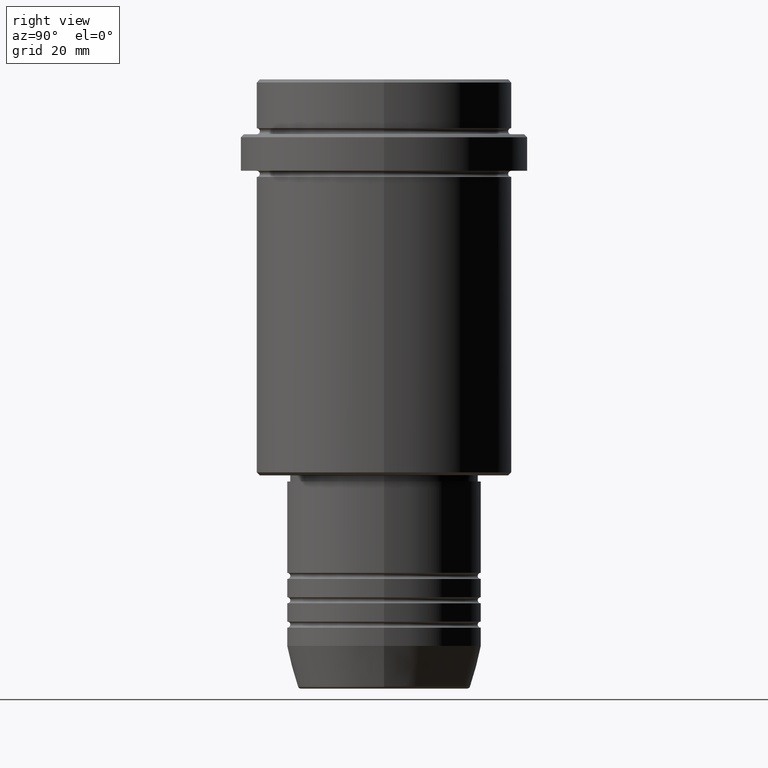
[diagram: clean part render]
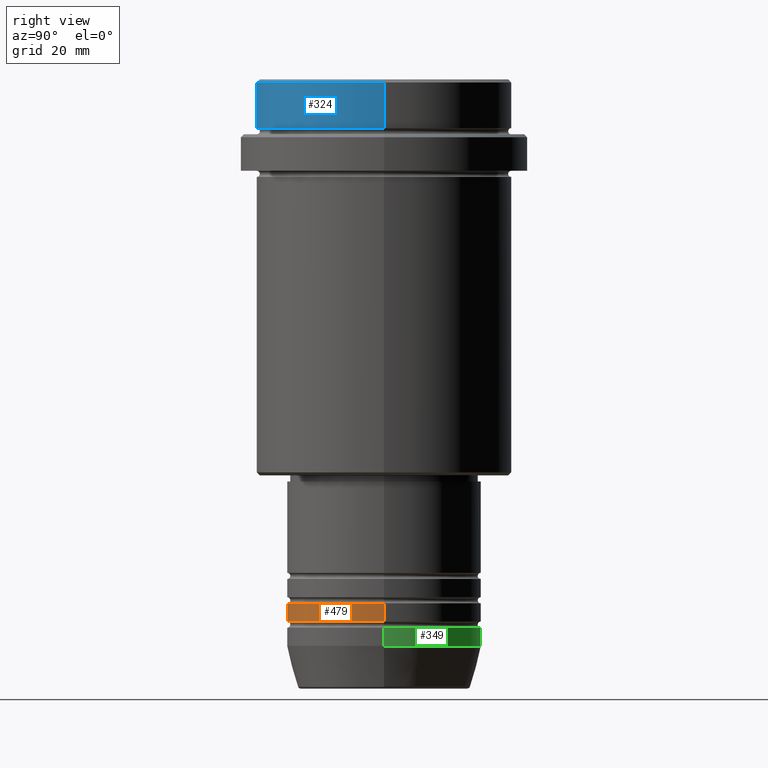
[diagram: same view with three faces highlighted in distinct colors, each labeled with its STEP entity id]
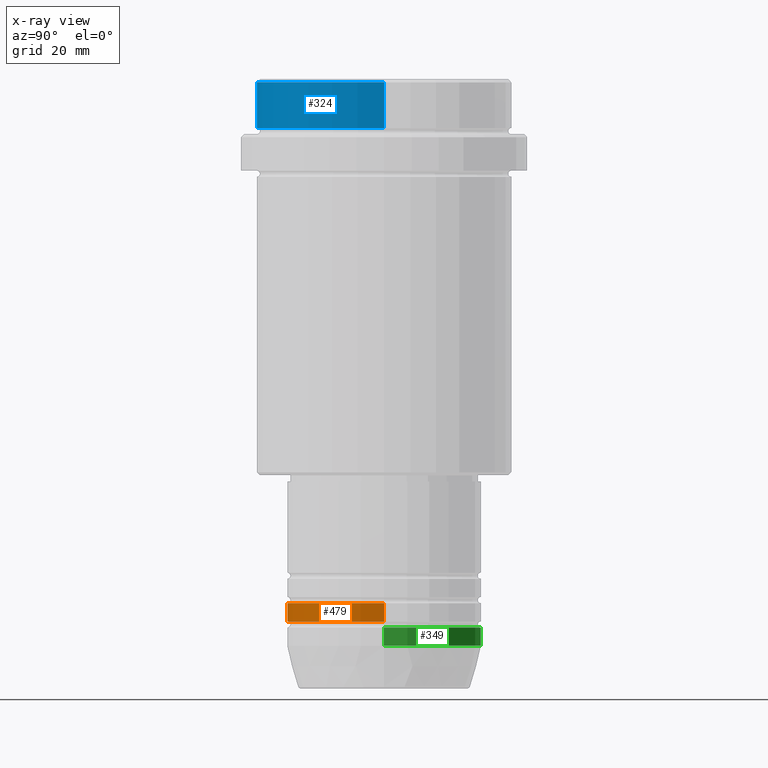
[diagram: x-ray of the same camera — body ghosted, the three highlighted faces saturated]
A machine part, right view with three faces highlighted in distinct colors.
The next image is the same camera in x-ray (body ghosted, the three faces saturated) — at least one of them is partly hidden behind the body in this view.
Their STEP definitions:

[orange] entity #479 — the highlighted cylindrical surface (partial cylindrical patch) has radius 16 mm, axis along (-0, -0, 1).
#7 = CARTESIAN_POINT ( 'NONE',  ( 0.000000000000000000, 0.000000000000000000, 0.000000000000000000 ) ) ;
#15 = CARTESIAN_POINT ( 'NONE',  ( -16.00000000000000000, 1.959434878635765131E-15, -85.99999999999988631 ) ) ;
#25 = LINE ( 'NONE', #1112, #635 ) ;
#27 = DIRECTION ( 'NONE',  ( -0.000000000000000000, -0.000000000000000000, 1.000000000000000000 ) ) ;
#29 = VERTEX_POINT ( 'NONE', #1347 ) ;
#33 = EDGE_CURVE ( 'NONE', #961, #869, #657, .T. ) ;
#44 = AXIS2_PLACEMENT_3D ( 'NONE', #876, #27, #662 ) ;
#148 = ORIENTED_EDGE ( 'NONE', *, *, #33, .F. ) ;
#186 = DIRECTION ( 'NONE',  ( -0.000000000000000000, -0.000000000000000000, 1.000000000000000000 ) ) ;
#188 = ORIENTED_EDGE ( 'NONE', *, *, #1206, .T. ) ;
#212 = VERTEX_POINT ( 'NONE', #1372 ) ;
#225 = DIRECTION ( 'NONE',  ( 1.000000000000000000, 0.000000000000000000, 0.000000000000000000 ) ) ;
#248 = CYLINDRICAL_SURFACE ( 'NONE', #263, 16.00000000000000000 ) ;
#263 = AXIS2_PLACEMENT_3D ( 'NONE', #7, #1099, #225 ) ;
#347 = DIRECTION ( 'NONE',  ( -0.000000000000000000, -0.000000000000000000, 1.000000000000000000 ) ) ;
#359 = FACE_OUTER_BOUND ( 'NONE', #742, .T. ) ;
#380 = CIRCLE ( 'NONE', #44, 16.00000000000000000 ) ;
#409 = CARTESIAN_POINT ( 'NONE',  ( 16.00000000000000000, 0.000000000000000000, -85.99999999999988631 ) ) ;
#463 = DIRECTION ( 'NONE',  ( -0.000000000000000000, -0.000000000000000000, 1.000000000000000000 ) ) ;
#479 = ADVANCED_FACE ( 'NONE', ( #359 ), #248, .T. ) ;
#501 = ORIENTED_EDGE ( 'NONE', *, *, #509, .T. ) ;
#503 = ORIENTED_EDGE ( 'NONE', *, *, #1360, .F. ) ;
#509 = EDGE_CURVE ( 'NONE', #212, #29, #380, .T. ) ;
#635 = VECTOR ( 'NONE', #347, 1000.000000000000000 ) ;
#657 = CIRCLE ( 'NONE', #699, 16.00000000000000000 ) ;
#662 = DIRECTION ( 'NONE',  ( 1.000000000000000000, 0.000000000000000000, 0.000000000000000000 ) ) ;
#699 = AXIS2_PLACEMENT_3D ( 'NONE', #1118, #463, #1125 ) ;
#742 = EDGE_LOOP ( 'NONE', ( #503, #501, #188, #148 ) ) ;
#869 = VERTEX_POINT ( 'NONE', #409 ) ;
#876 = CARTESIAN_POINT ( 'NONE',  ( 0.000000000000000000, 0.000000000000000000, -88.99999999999988631 ) ) ;
#883 = VECTOR ( 'NONE', #186, 1000.000000000000000 ) ;
#961 = VERTEX_POINT ( 'NONE', #15 ) ;
#1058 = LINE ( 'NONE', #1176, #883 ) ;
#1099 = DIRECTION ( 'NONE',  ( -0.000000000000000000, -0.000000000000000000, 1.000000000000000000 ) ) ;
#1112 = CARTESIAN_POINT ( 'NONE',  ( -16.00000000000000000, 1.959434878635765131E-15, 0.000000000000000000 ) ) ;
#1118 = CARTESIAN_POINT ( 'NONE',  ( 0.000000000000000000, 0.000000000000000000, -85.99999999999988631 ) ) ;
#1125 = DIRECTION ( 'NONE',  ( 1.000000000000000000, 0.000000000000000000, 0.000000000000000000 ) ) ;
#1176 = CARTESIAN_POINT ( 'NONE',  ( 16.00000000000000000, 0.000000000000000000, 0.000000000000000000 ) ) ;
#1206 = EDGE_CURVE ( 'NONE', #29, #869, #1058, .T. ) ;
#1347 = CARTESIAN_POINT ( 'NONE',  ( 16.00000000000000000, 0.000000000000000000, -88.99999999999988631 ) ) ;
#1360 = EDGE_CURVE ( 'NONE', #212, #961, #25, .T. ) ;
#1372 = CARTESIAN_POINT ( 'NONE',  ( -16.00000000000000000, 1.959434878635765131E-15, -88.99999999999988631 ) ) ;

[blue] entity #324 — the highlighted cylindrical surface (partial cylindrical patch) has radius 21 mm, axis along (-0, -0, 1).
#168 = ORIENTED_EDGE ( 'NONE', *, *, #394, .F. ) ;
#177 = AXIS2_PLACEMENT_3D ( 'NONE', #734, #948, #210 ) ;
#203 = CARTESIAN_POINT ( 'NONE',  ( 21.00000000000000000, 0.000000000000000000, -7.999999999999998224 ) ) ;
#210 = DIRECTION ( 'NONE',  ( 1.000000000000000000, 0.000000000000000000, 0.000000000000000000 ) ) ;
#216 = CARTESIAN_POINT ( 'NONE',  ( -21.00000000000000000, 2.571758278209441661E-15, 0.000000000000000000 ) ) ;
#244 = EDGE_CURVE ( 'NONE', #753, #795, #1162, .T. ) ;
#254 = CARTESIAN_POINT ( 'NONE',  ( 0.000000000000000000, 0.000000000000000000, -7.999999999999998224 ) ) ;
#279 = ORIENTED_EDGE ( 'NONE', *, *, #244, .T. ) ;
#324 = ADVANCED_FACE ( 'NONE', ( #1179 ), #402, .T. ) ;
#394 = EDGE_CURVE ( 'NONE', #753, #1022, #1197, .T. ) ;
#402 = CYLINDRICAL_SURFACE ( 'NONE', #177, 21.00000000000000000 ) ;
#457 = DIRECTION ( 'NONE',  ( -0.000000000000000000, -0.000000000000000000, 1.000000000000000000 ) ) ;
#486 = DIRECTION ( 'NONE',  ( 1.000000000000000000, 0.000000000000000000, 0.000000000000000000 ) ) ;
#530 = EDGE_CURVE ( 'NONE', #795, #1070, #667, .T. ) ;
#558 = CARTESIAN_POINT ( 'NONE',  ( 21.00000000000000000, 0.000000000000000000, 0.000000000000000000 ) ) ;
#585 = AXIS2_PLACEMENT_3D ( 'NONE', #254, #595, #1151 ) ;
#595 = DIRECTION ( 'NONE',  ( -0.000000000000000000, -0.000000000000000000, 1.000000000000000000 ) ) ;
#632 = EDGE_CURVE ( 'NONE', #1070, #1022, #815, .T. ) ;
#648 = DIRECTION ( 'NONE',  ( -0.000000000000000000, -0.000000000000000000, 1.000000000000000000 ) ) ;
#667 = LINE ( 'NONE', #558, #867 ) ;
#705 = CARTESIAN_POINT ( 'NONE',  ( -21.00000000000000000, 2.571758278209441661E-15, -7.999999999999998224 ) ) ;
#734 = CARTESIAN_POINT ( 'NONE',  ( 0.000000000000000000, 0.000000000000000000, 0.000000000000000000 ) ) ;
#753 = VERTEX_POINT ( 'NONE', #705 ) ;
#767 = CARTESIAN_POINT ( 'NONE',  ( -21.00000000000000000, 2.571758278209441661E-15, -0.4999999999999970024 ) ) ;
#795 = VERTEX_POINT ( 'NONE', #203 ) ;
#815 = CIRCLE ( 'NONE', #1409, 21.00000000000000000 ) ;
#821 = DIRECTION ( 'NONE',  ( 0.000000000000000000, 0.000000000000000000, -1.000000000000000000 ) ) ;
#867 = VECTOR ( 'NONE', #457, 1000.000000000000000 ) ;
#948 = DIRECTION ( 'NONE',  ( -0.000000000000000000, -0.000000000000000000, 1.000000000000000000 ) ) ;
#981 = VECTOR ( 'NONE', #648, 1000.000000000000000 ) ;
#1022 = VERTEX_POINT ( 'NONE', #767 ) ;
#1053 = CARTESIAN_POINT ( 'NONE',  ( 0.000000000000000000, 0.000000000000000000, -0.4999999999999970024 ) ) ;
#1057 = EDGE_LOOP ( 'NONE', ( #168, #279, #1338, #1333 ) ) ;
#1070 = VERTEX_POINT ( 'NONE', #1257 ) ;
#1151 = DIRECTION ( 'NONE',  ( 1.000000000000000000, 0.000000000000000000, 0.000000000000000000 ) ) ;
#1162 = CIRCLE ( 'NONE', #585, 21.00000000000000000 ) ;
#1179 = FACE_OUTER_BOUND ( 'NONE', #1057, .T. ) ;
#1197 = LINE ( 'NONE', #216, #981 ) ;
#1257 = CARTESIAN_POINT ( 'NONE',  ( 21.00000000000000000, 0.000000000000000000, -0.4999999999999970024 ) ) ;
#1333 = ORIENTED_EDGE ( 'NONE', *, *, #632, .T. ) ;
#1338 = ORIENTED_EDGE ( 'NONE', *, *, #530, .T. ) ;
#1409 = AXIS2_PLACEMENT_3D ( 'NONE', #1053, #821, #486 ) ;

[green] entity #349 — the highlighted cylindrical surface (partial cylindrical patch) has radius 16 mm, axis along (-0, -0, 1).
#6 = EDGE_CURVE ( 'NONE', #1173, #301, #1346, .T. ) ;
#48 = CARTESIAN_POINT ( 'NONE',  ( -16.00000000000000000, 1.959434878635765131E-15, -93.00000000000000000 ) ) ;
#80 = ORIENTED_EDGE ( 'NONE', *, *, #1171, .T. ) ;
#81 = DIRECTION ( 'NONE',  ( -0.000000000000000000, -0.000000000000000000, 1.000000000000000000 ) ) ;
#103 = VERTEX_POINT ( 'NONE', #1130 ) ;
#243 = CARTESIAN_POINT ( 'NONE',  ( 0.000000000000000000, 0.000000000000000000, -90.00000000000000000 ) ) ;
#293 = DIRECTION ( 'NONE',  ( -0.000000000000000000, -0.000000000000000000, 1.000000000000000000 ) ) ;
#300 = CARTESIAN_POINT ( 'NONE',  ( 0.000000000000000000, 0.000000000000000000, 0.000000000000000000 ) ) ;
#301 = VERTEX_POINT ( 'NONE', #433 ) ;
#323 = FACE_OUTER_BOUND ( 'NONE', #631, .T. ) ;
#337 = AXIS2_PLACEMENT_3D ( 'NONE', #300, #81, #741 ) ;
#349 = ADVANCED_FACE ( 'NONE', ( #323 ), #653, .T. ) ;
#356 = VECTOR ( 'NONE', #1172, 1000.000000000000000 ) ;
#382 = VECTOR ( 'NONE', #293, 1000.000000000000000 ) ;
#425 = AXIS2_PLACEMENT_3D ( 'NONE', #243, #779, #1021 ) ;
#433 = CARTESIAN_POINT ( 'NONE',  ( -16.00000000000000000, 1.959434878635765131E-15, -90.00000000000000000 ) ) ;
#459 = ORIENTED_EDGE ( 'NONE', *, *, #802, .F. ) ;
#502 = DIRECTION ( 'NONE',  ( 1.000000000000000000, 0.000000000000000000, 0.000000000000000000 ) ) ;
#532 = DIRECTION ( 'NONE',  ( -0.000000000000000000, -0.000000000000000000, 1.000000000000000000 ) ) ;
#543 = AXIS2_PLACEMENT_3D ( 'NONE', #962, #532, #502 ) ;
#571 = ORIENTED_EDGE ( 'NONE', *, *, #6, .F. ) ;
#612 = CARTESIAN_POINT ( 'NONE',  ( -16.00000000000000000, 1.959434878635765131E-15, 0.000000000000000000 ) ) ;
#622 = CARTESIAN_POINT ( 'NONE',  ( 16.00000000000000000, 0.000000000000000000, 0.000000000000000000 ) ) ;
#631 = EDGE_LOOP ( 'NONE', ( #1095, #80, #571, #459 ) ) ;
#641 = LINE ( 'NONE', #622, #382 ) ;
#653 = CYLINDRICAL_SURFACE ( 'NONE', #337, 16.00000000000000000 ) ;
#708 = VERTEX_POINT ( 'NONE', #48 ) ;
#741 = DIRECTION ( 'NONE',  ( 1.000000000000000000, 0.000000000000000000, 0.000000000000000000 ) ) ;
#779 = DIRECTION ( 'NONE',  ( -0.000000000000000000, -0.000000000000000000, 1.000000000000000000 ) ) ;
#802 = EDGE_CURVE ( 'NONE', #103, #1173, #641, .T. ) ;
#945 = CARTESIAN_POINT ( 'NONE',  ( 16.00000000000000000, 0.000000000000000000, -90.00000000000000000 ) ) ;
#962 = CARTESIAN_POINT ( 'NONE',  ( 0.000000000000000000, 0.000000000000000000, -93.00000000000000000 ) ) ;
#1021 = DIRECTION ( 'NONE',  ( 1.000000000000000000, 0.000000000000000000, 0.000000000000000000 ) ) ;
#1023 = CIRCLE ( 'NONE', #543, 16.00000000000000000 ) ;
#1095 = ORIENTED_EDGE ( 'NONE', *, *, #1198, .T. ) ;
#1130 = CARTESIAN_POINT ( 'NONE',  ( 16.00000000000000000, 0.000000000000000000, -93.00000000000000000 ) ) ;
#1171 = EDGE_CURVE ( 'NONE', #708, #301, #1382, .T. ) ;
#1172 = DIRECTION ( 'NONE',  ( -0.000000000000000000, -0.000000000000000000, 1.000000000000000000 ) ) ;
#1173 = VERTEX_POINT ( 'NONE', #945 ) ;
#1198 = EDGE_CURVE ( 'NONE', #103, #708, #1023, .T. ) ;
#1346 = CIRCLE ( 'NONE', #425, 16.00000000000000000 ) ;
#1382 = LINE ( 'NONE', #612, #356 ) ;